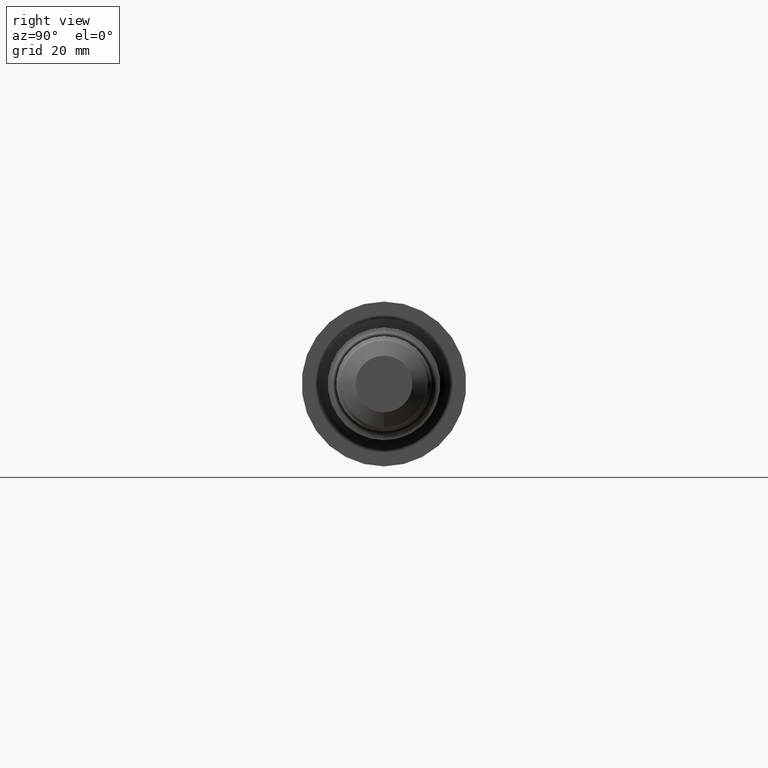
[diagram: clean part render]
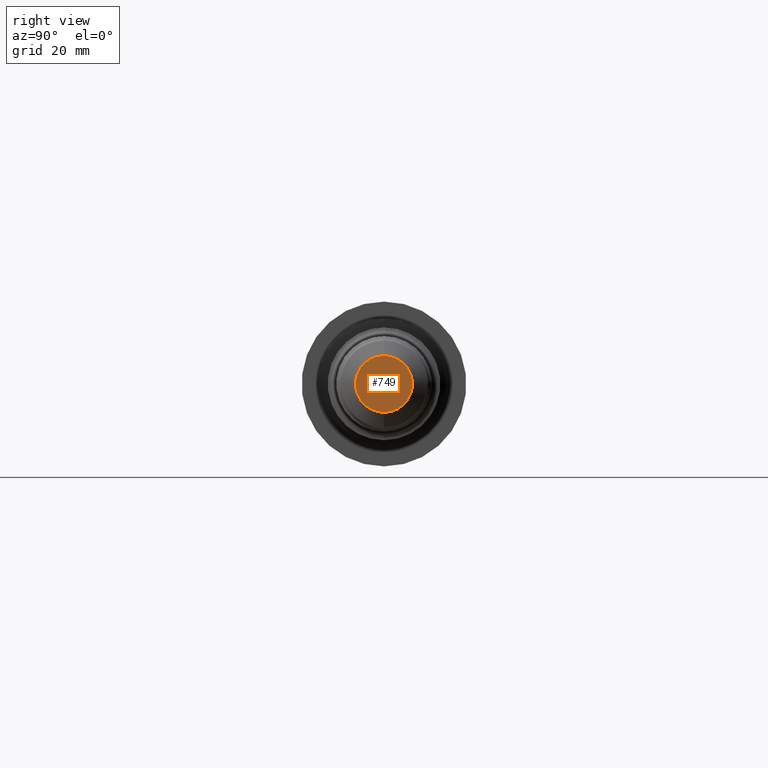
[diagram: same view with one face highlighted and labeled with its STEP entity id]
A machine part, right view. The second image highlights one B-rep face of the part: STEP entity #749.
In plain terms, the highlighted planar face has unit normal (-1, 0, -0).
Its self-contained STEP definition (entity closure, byte-faithful):
#10 = CARTESIAN_POINT ( 'NONE',  ( 5.000000000000000000, 3.169123441831430899E-17, -0.2046571346837141592 ) ) ;
#56 = EDGE_LOOP ( 'NONE', ( #757, #91 ) ) ;
#84 = EDGE_CURVE ( 'NONE', #343, #825, #504, .T. ) ;
#91 = ORIENTED_EDGE ( 'NONE', *, *, #84, .F. ) ;
#200 = DIRECTION ( 'NONE',  ( -1.000000000000000000, -0.0000000000000000000, -0.0000000000000000000 ) ) ;
#211 = CIRCLE ( 'NONE', #531, 0.2046571346837141592 ) ;
#227 = DIRECTION ( 'NONE',  ( -1.000000000000000000, -0.0000000000000000000, -0.0000000000000000000 ) ) ;
#240 = DIRECTION ( 'NONE',  ( -0.0000000000000000000, 0.0000000000000000000, 1.000000000000000000 ) ) ;
#343 = VERTEX_POINT ( 'NONE', #10 ) ;
#419 = CARTESIAN_POINT ( 'NONE',  ( 5.000000000000000000, 0.2046571346837141592, 0.0000000000000000000 ) ) ;
#471 = DIRECTION ( 'NONE',  ( -1.000000000000000000, 0.0000000000000000000, -0.0000000000000000000 ) ) ;
#504 = CIRCLE ( 'NONE', #524, 0.2046571346837141592 ) ;
#514 = PLANE ( 'NONE',  #580 ) ;
#524 = AXIS2_PLACEMENT_3D ( 'NONE', #819, #200, #869 ) ;
#528 = EDGE_CURVE ( 'NONE', #825, #343, #211, .T. ) ;
#531 = AXIS2_PLACEMENT_3D ( 'NONE', #705, #227, #800 ) ;
#580 = AXIS2_PLACEMENT_3D ( 'NONE', #419, #471, #240 ) ;
#602 = FACE_OUTER_BOUND ( 'NONE', #56, .T. ) ;
#705 = CARTESIAN_POINT ( 'NONE',  ( 5.000000000000000000, 0.0000000000000000000, 0.0000000000000000000 ) ) ;
#749 = ADVANCED_FACE ( 'NONE', ( #602 ), #514, .F. ) ;
#757 = ORIENTED_EDGE ( 'NONE', *, *, #528, .F. ) ;
#797 = CARTESIAN_POINT ( 'NONE',  ( 5.000000000000000000, 0.0000000000000000000, 0.2046571346837141592 ) ) ;
#800 = DIRECTION ( 'NONE',  ( 0.0000000000000000000, 0.0000000000000000000, 1.000000000000000000 ) ) ;
#819 = CARTESIAN_POINT ( 'NONE',  ( 5.000000000000000000, 0.0000000000000000000, 0.0000000000000000000 ) ) ;
#825 = VERTEX_POINT ( 'NONE', #797 ) ;
#869 = DIRECTION ( 'NONE',  ( 0.0000000000000000000, 0.0000000000000000000, 1.000000000000000000 ) ) ;